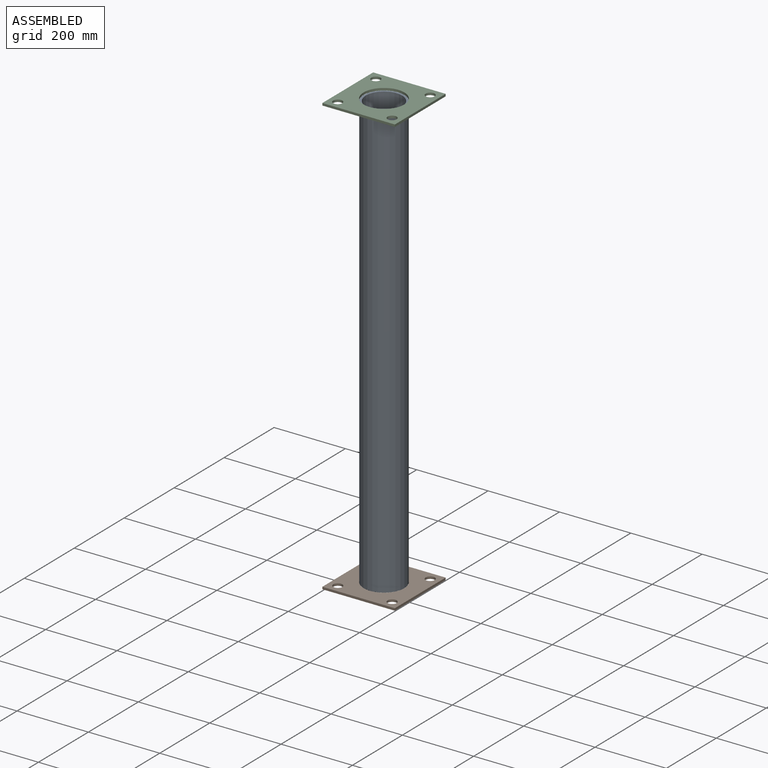
[diagram: assembled view]
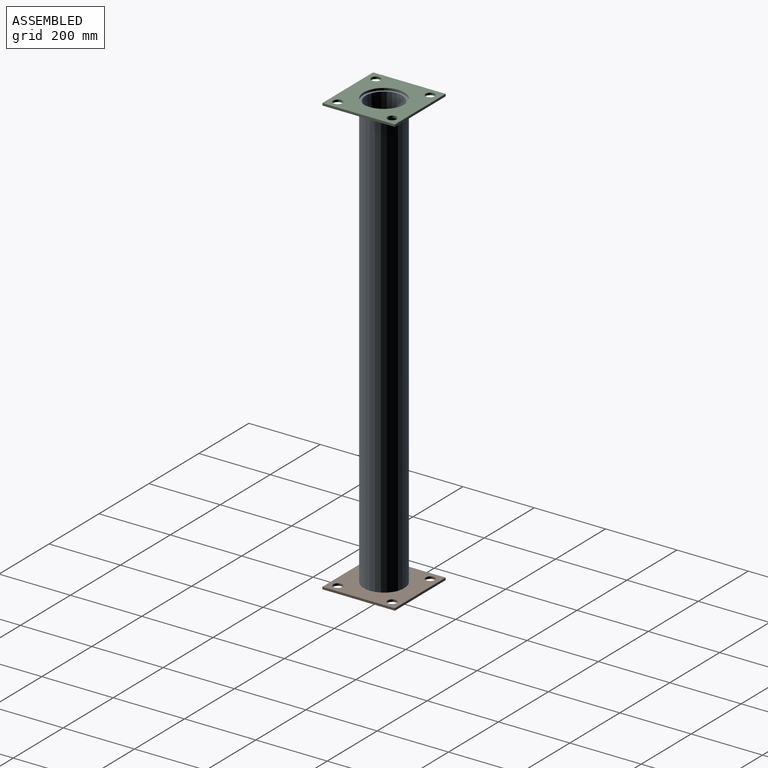
[diagram: assembled view, second angle]
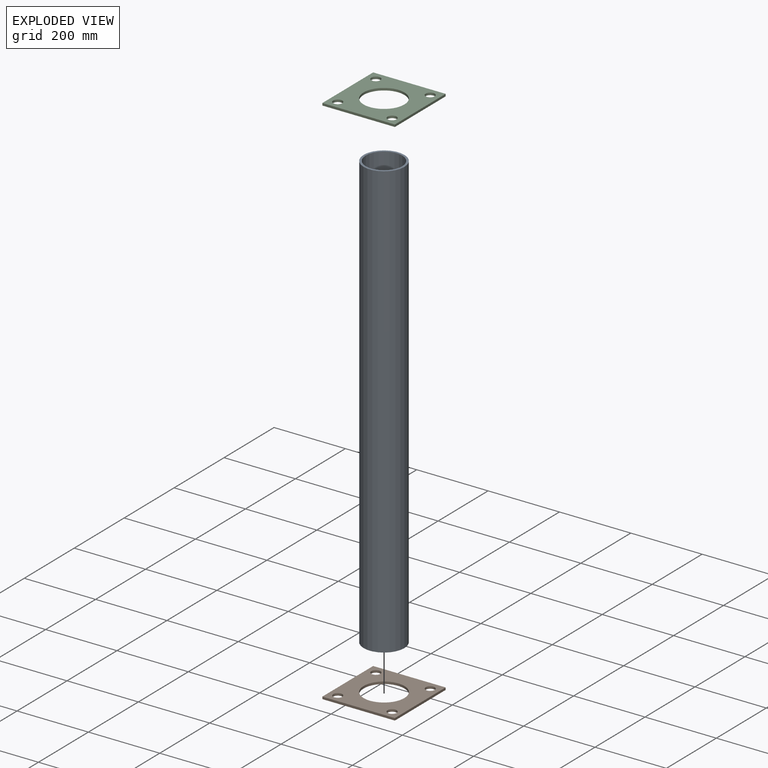
[diagram: exploded view]
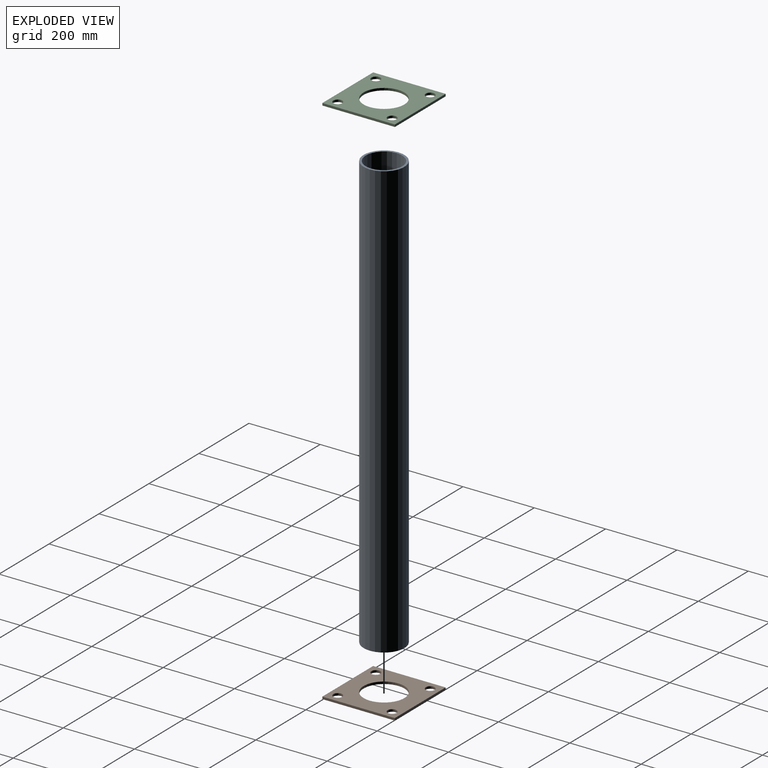
[diagram: exploded view, second angle]
ASSEMBLY  parts=3 mates=2
PART A: 4 faces, bbox 114.3x114.3x1219.2 mm
  f0: cylinder r=51.13mm len=1219.2mm, axis (0,0,-1), area 391680.8mm2, adj f2,f3
  f1: cylinder r=57.15mm len=1219.2mm, axis (0,0,-1), area 437795.3mm2, adj f2,f3
  f2: plane 114.3x114.3mm, normal (0,0,1), area 2047.8mm2, adj f0,f1
  f3: plane 114.3x114.3mm, normal (0,0,-1), area 2047.8mm2, adj f0,f1
PART B: 11 faces, bbox 203.2x203.2x6.4 mm
  f0: plane 203.2x6.35mm, normal (1,0,0), area 1290.3mm2, adj f1,f4,f5,f6
  f1: plane 203.2x6.35mm, normal (0,1,0), area 1290.3mm2, adj f0,f2,f5,f6
  f2: plane 203.2x6.35mm, normal (-1,0,0), area 1290.3mm2, adj f1,f4,f5,f6
  f3: cylinder r=57.15mm len=114.3mm, axis (0,0,1), area 2280.2mm2, adj f5,f6
  f4: plane 203.2x6.35mm, normal (0,-1,0), area 1290.3mm2, adj f0,f2,f5,f6
  f5: plane 203.2x203.2mm, normal (0,0,-1), area 29002.6mm2, adj f0,f1,f2,f3,f4,f7,f8,f9
  f6: plane 203.2x203.2mm, normal (0,0,1), area 29002.6mm2, adj f0,f1,f2,f3,f4,f7,f8,f9
  f7: cylinder r=12.7mm len=25.4mm, axis (0,0,-1), area 506.7mm2, adj f5,f6
  f8: cylinder r=12.7mm len=25.4mm, axis (0,0,-1), area 506.7mm2, adj f5,f6
  f9: cylinder r=12.7mm len=25.4mm, axis (0,0,-1), area 506.7mm2, adj f5,f6
  f10: cylinder r=12.7mm len=25.4mm, axis (0,0,-1), area 506.7mm2, adj f5,f6
PART C: 11 faces, bbox 203.2x203.2x6.4 mm
  f0: plane 203.2x6.35mm, normal (1,0,0), area 1290.3mm2, adj f1,f4,f5,f6
  f1: plane 203.2x6.35mm, normal (0,1,0), area 1290.3mm2, adj f0,f2,f5,f6
  f2: plane 203.2x6.35mm, normal (-1,0,0), area 1290.3mm2, adj f1,f4,f5,f6
  f3: cylinder r=57.15mm len=114.3mm, axis (0,0,-1), area 2280.2mm2, adj f5,f6
  f4: plane 203.2x6.35mm, normal (0,-1,0), area 1290.3mm2, adj f0,f2,f5,f6
  f5: plane 203.2x203.2mm, normal (0,0,1), area 29002.6mm2, adj f0,f1,f2,f3,f4,f7,f8,f9
  f6: plane 203.2x203.2mm, normal (0,0,-1), area 29002.6mm2, adj f0,f1,f2,f3,f4,f7,f8,f9
  f7: cylinder r=12.7mm len=25.4mm, axis (0,0,1), area 506.7mm2, adj f5,f6
  f8: cylinder r=12.7mm len=25.4mm, axis (0,0,1), area 506.7mm2, adj f5,f6
  f9: cylinder r=12.7mm len=25.4mm, axis (0,0,1), area 506.7mm2, adj f5,f6
  f10: cylinder r=12.7mm len=25.4mm, axis (0,0,1), area 506.7mm2, adj f5,f6
PLACE A t=(-137.53,-77.05,3.53)mm
PLACE B t=(-137.53,-77.05,3.53)mm
PLACE C t=(-137.53,-77.05,3.53)mm
MATE fastened C.f3 <-> A.f0  axis (0,0,-1) through (-137.53,-77.05,613.13)mm
MATE fastened B.f3 <-> A.f0  axis (0,0,1) through (-137.53,-77.05,-606.07)mm
